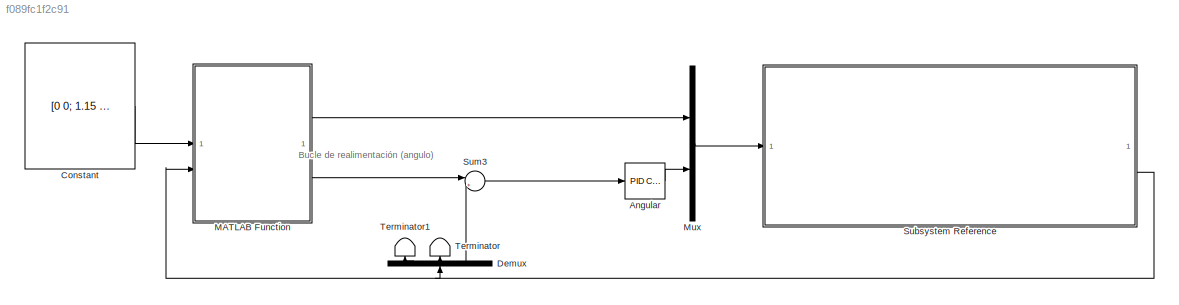
MODEL slx_f089fc1f2c91
KIND model
CONFIG AbsTol = auto
CONFIG EnableMultiTasking = on
CONFIG FixedStep = auto
CONFIG MaxStep = auto
CONFIG MinStep = auto
CONFIG RelTol = 1e-3
CONFIG SampleTimeConstraint = Unconstrained
CONFIG SolverName = FixedStepAuto
CONFIG StartTime = 0.0
CONFIG StopTime = 50
WORKSPACE source: mxarray member
WORKSPACE d = 0.15
BLOCK [Reference] Angular  REF=slpidlib/PID Controller
  LibrarySourceBlock = simulink/Continuous/PID Controller
  SourceBlock = slpidlib/PID Controller
  SourceType = PID 1dof
BLOCK [Constant] Constant
  Value = [0 0; 1.15 0; 1.15 -0.15; 0.35 0.8; 0.35 1.6; 1.9 1.6; 1.9 0; 2.607 -0.707]
BLOCK [Demux] Demux
  NameLocation = right
  Outputs = 3
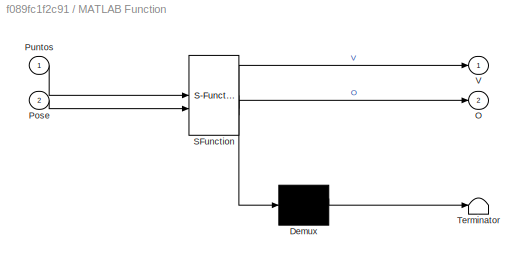
BLOCK [SubSystem] MATLAB Function
  ErrorFcn = Stateflow.Translate.translate
  PermitHierarchicalResolution = ExplicitOnly
  SFBlockType = MATLAB Function
  TreatAsAtomicUnit = on
BLOCK [Demux] MATLAB Function/ Demux 
  Outputs = 1
BLOCK [S-Function] MATLAB Function/ SFunction 
  EnableBusSupport = on
  FunctionName = sf_sfun
  PortCounts = [2 3]
  SFcnIsStateOwnerBlock = off
  SFunctionDeploymentMode = off
  Tag = Stateflow S-Function 2
BLOCK [Terminator] MATLAB Function/ Terminator 
BLOCK [Outport] MATLAB Function/O
  Port = 2
BLOCK [Inport] MATLAB Function/Pose
  Port = 2
BLOCK [Inport] MATLAB Function/Puntos
BLOCK [Outport] MATLAB Function/V
BLOCK [Mux] Mux
  DisplayOption = bar
  Inputs = 2
BLOCK [SubSystem] Subsystem Reference
  ReferencedSubsystem = PieroCalculos
BLOCK [Sum] Sum3
  Inputs = |+-
BLOCK [Terminator] Terminator
  NameLocation = right
BLOCK [Terminator] Terminator1
  NameLocation = right
ANNOTATION (root): Bucle de realimentación (angulo)
LINE Angular:1 -> Mux:2
LINE Constant:1 -> MATLAB Function:1
LINE Demux:1 -> Terminator1:1
LINE Demux:2 -> Terminator:1
LINE Demux:3 -> Sum3:2
LINE MATLAB Function:1 -> Mux:1
LINE MATLAB Function:2 -> Sum3:1
LINE Mux:1 -> Subsystem Reference:1
NET Subsystem Reference:2 -> Demux:1, MATLAB Function:2
LINE Sum3:1 -> Angular:1
note: NET lines group one-source signal fan-out (src -> all destinations, sorted); 1:1 wires keep LINE
CHART MATLAB Function states=1 transitions=1
  STATE_LABEL 'eML_blk_kernel()'
  STATE_LABEL 'SCRIPT:\nfunction [V,O] = fcn(Puntos,Pose)\n\nLA=0.2;\ndistancia_act=0;\ndistancia_ant=0;\npersistent iter;\nif isempty(iter)\n    iter=1;\nend\n\nif(iter<length(Puntos))\n    punto_act=Puntos(iter+1,:);\n    punto_ant=Puntos(iter,:);\n    distancia_act=sqrt((punto_act(2)-Pose(2))^2+(punto_act(1)-Pose(1))^2);\n    distancia_ant=sqrt((punto_ant(2)-Pose(2))^2+(punto_ant(1)-Pose(1))^2);\n    v=0.25;\n    o=atan2(punt...<+177ch>'
CHART  states=0 transitions=0
